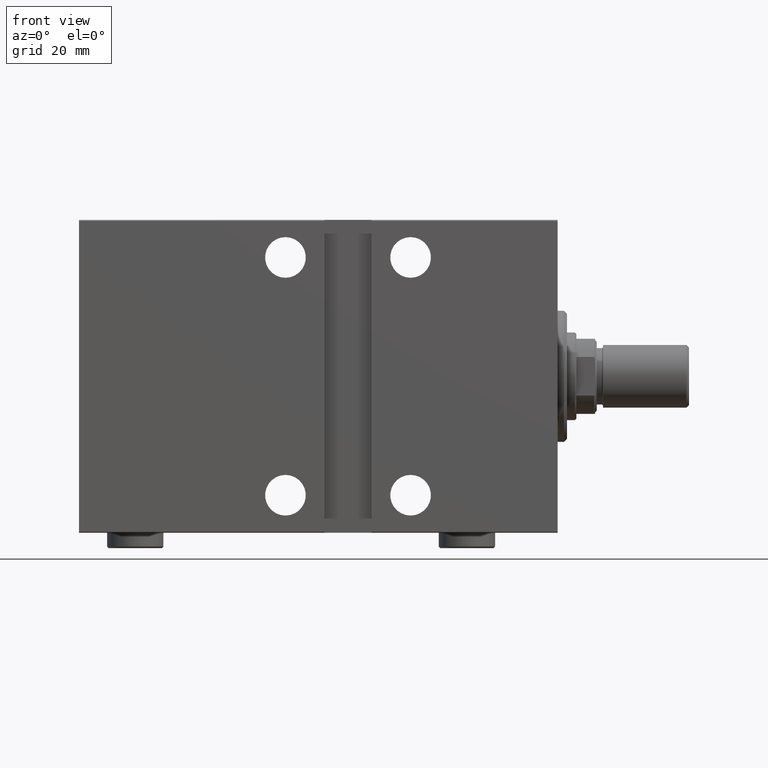
[diagram: clean part render]
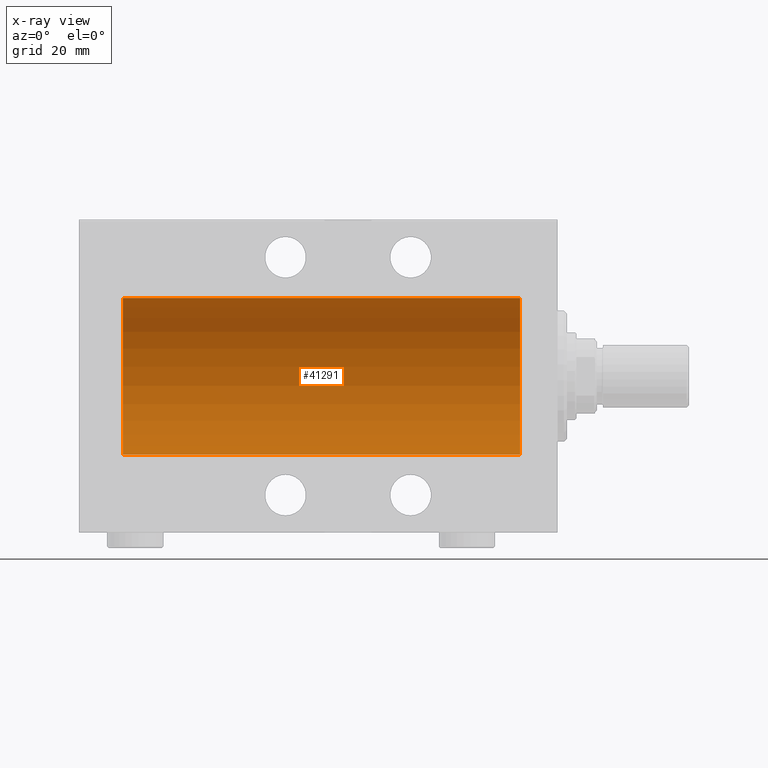
[diagram: x-ray — body ghosted, one internal face saturated and labeled with its STEP entity id]
A machine part, front view, then the same camera in x-ray: the body is ghosted and one INTERNAL B-rep face — a face not visible from any outside direction — is saturated and labeled: STEP entity #41291.
In plain terms, the highlighted cylindrical surface (partial cylindrical patch) has radius 25 mm, axis along (1, 0, -0).
Its self-contained STEP definition (entity closure, byte-faithful):
#140 = VERTEX_POINT ( 'NONE', #26109 ) ;
#814 = DIRECTION ( 'NONE',  ( -1.000000000000000000, -0.000000000000000000, -0.000000000000000000 ) ) ;
#1099 = DIRECTION ( 'NONE',  ( 0.000000000000000000, 0.000000000000000000, 1.000000000000000000 ) ) ;
#2418 = EDGE_LOOP ( 'NONE', ( #17247, #3700, #12472, #43156 ) ) ;
#2992 = LINE ( 'NONE', #16839, #25876 ) ;
#3700 = ORIENTED_EDGE ( 'NONE', *, *, #18243, .T. ) ;
#4465 = CARTESIAN_POINT ( 'NONE',  ( 139.0000000000000000, 0.000000000000000000, 0.000000000000000000 ) ) ;
#11815 = AXIS2_PLACEMENT_3D ( 'NONE', #17692, #38275, #24627 ) ;
#12472 = ORIENTED_EDGE ( 'NONE', *, *, #37853, .T. ) ;
#13772 = AXIS2_PLACEMENT_3D ( 'NONE', #4465, #14744, #34888 ) ;
#14306 = CARTESIAN_POINT ( 'NONE',  ( 139.0000000000000000, 3.061616997868383043E-15, -25.00000000000000000 ) ) ;
#14744 = DIRECTION ( 'NONE',  ( -1.000000000000000000, 0.000000000000000000, 0.000000000000000000 ) ) ;
#14943 = DIRECTION ( 'NONE',  ( -1.000000000000000000, -0.000000000000000000, -0.000000000000000000 ) ) ;
#16839 = CARTESIAN_POINT ( 'NONE',  ( 139.0000000000000000, 3.061616997868383043E-15, -25.00000000000000000 ) ) ;
#17061 = DIRECTION ( 'NONE',  ( -1.000000000000000000, -0.000000000000000000, -0.000000000000000000 ) ) ;
#17247 = ORIENTED_EDGE ( 'NONE', *, *, #19387, .F. ) ;
#17692 = CARTESIAN_POINT ( 'NONE',  ( 12.00000000000001066, 0.000000000000000000, 0.000000000000000000 ) ) ;
#18092 = CYLINDRICAL_SURFACE ( 'NONE', #34784, 25.00000000000000000 ) ;
#18243 = EDGE_CURVE ( 'NONE', #33298, #26819, #2992, .T. ) ;
#18304 = CARTESIAN_POINT ( 'NONE',  ( 139.0000000000000000, 0.000000000000000000, 0.000000000000000000 ) ) ;
#19387 = EDGE_CURVE ( 'NONE', #33298, #140, #33070, .T. ) ;
#21174 = LINE ( 'NONE', #30785, #31797 ) ;
#22118 = FACE_OUTER_BOUND ( 'NONE', #2418, .T. ) ;
#23263 = CARTESIAN_POINT ( 'NONE',  ( 12.00000000000001066, 0.000000000000000000, 25.00000000000000000 ) ) ;
#24023 = CARTESIAN_POINT ( 'NONE',  ( 12.00000000000001066, 3.061616997868383043E-15, -25.00000000000000000 ) ) ;
#24627 = DIRECTION ( 'NONE',  ( 0.000000000000000000, 0.000000000000000000, 1.000000000000000000 ) ) ;
#25876 = VECTOR ( 'NONE', #17061, 1000.000000000000000 ) ;
#26109 = CARTESIAN_POINT ( 'NONE',  ( 139.0000000000000000, 0.000000000000000000, 25.00000000000000000 ) ) ;
#26819 = VERTEX_POINT ( 'NONE', #24023 ) ;
#30253 = VERTEX_POINT ( 'NONE', #23263 ) ;
#30785 = CARTESIAN_POINT ( 'NONE',  ( 139.0000000000000000, 0.000000000000000000, 25.00000000000000000 ) ) ;
#31797 = VECTOR ( 'NONE', #814, 1000.000000000000000 ) ;
#33070 = CIRCLE ( 'NONE', #13772, 25.00000000000000000 ) ;
#33298 = VERTEX_POINT ( 'NONE', #14306 ) ;
#34784 = AXIS2_PLACEMENT_3D ( 'NONE', #18304, #14943, #1099 ) ;
#34888 = DIRECTION ( 'NONE',  ( 0.000000000000000000, 0.000000000000000000, 1.000000000000000000 ) ) ;
#37853 = EDGE_CURVE ( 'NONE', #26819, #30253, #40421, .T. ) ;
#38275 = DIRECTION ( 'NONE',  ( -1.000000000000000000, 0.000000000000000000, 0.000000000000000000 ) ) ;
#38465 = EDGE_CURVE ( 'NONE', #140, #30253, #21174, .T. ) ;
#40421 = CIRCLE ( 'NONE', #11815, 25.00000000000000000 ) ;
#41291 = ADVANCED_FACE ( 'NONE', ( #22118 ), #18092, .F. ) ;
#43156 = ORIENTED_EDGE ( 'NONE', *, *, #38465, .F. ) ;